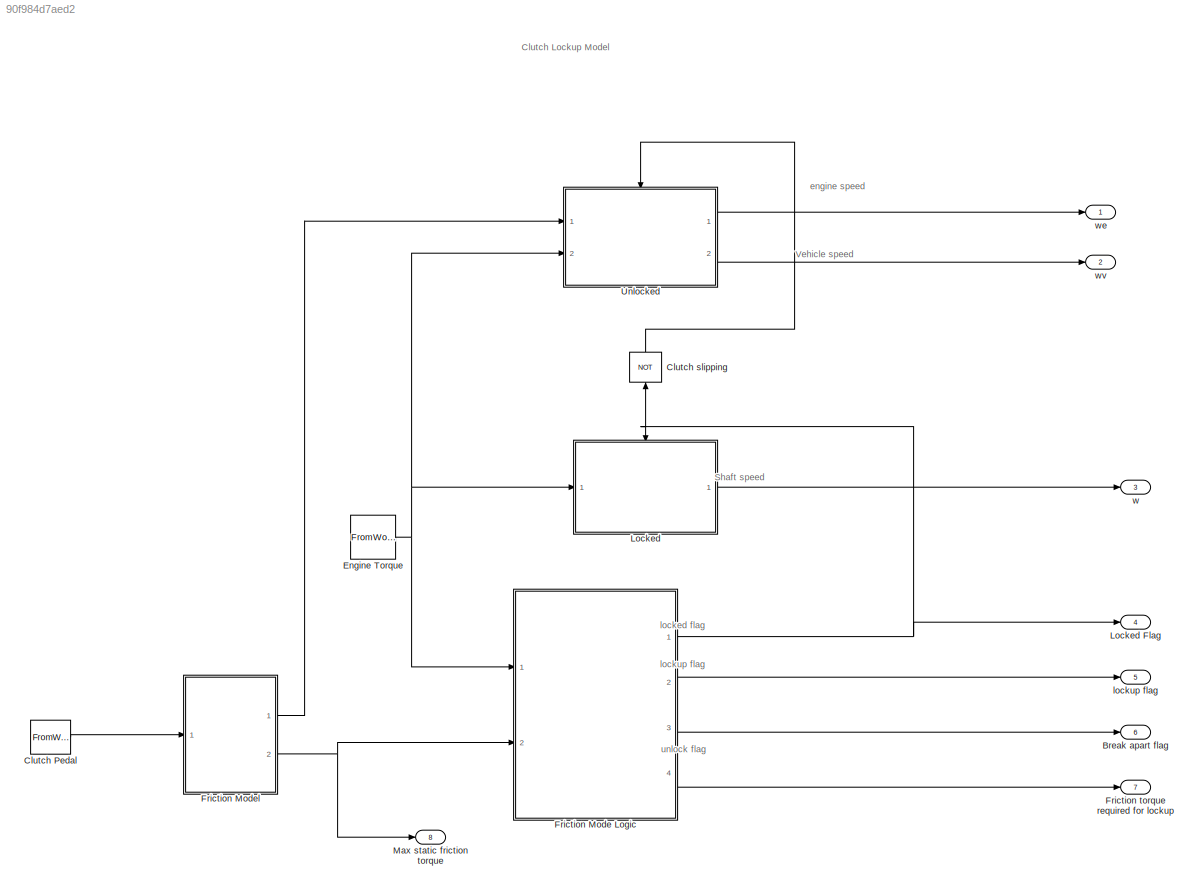
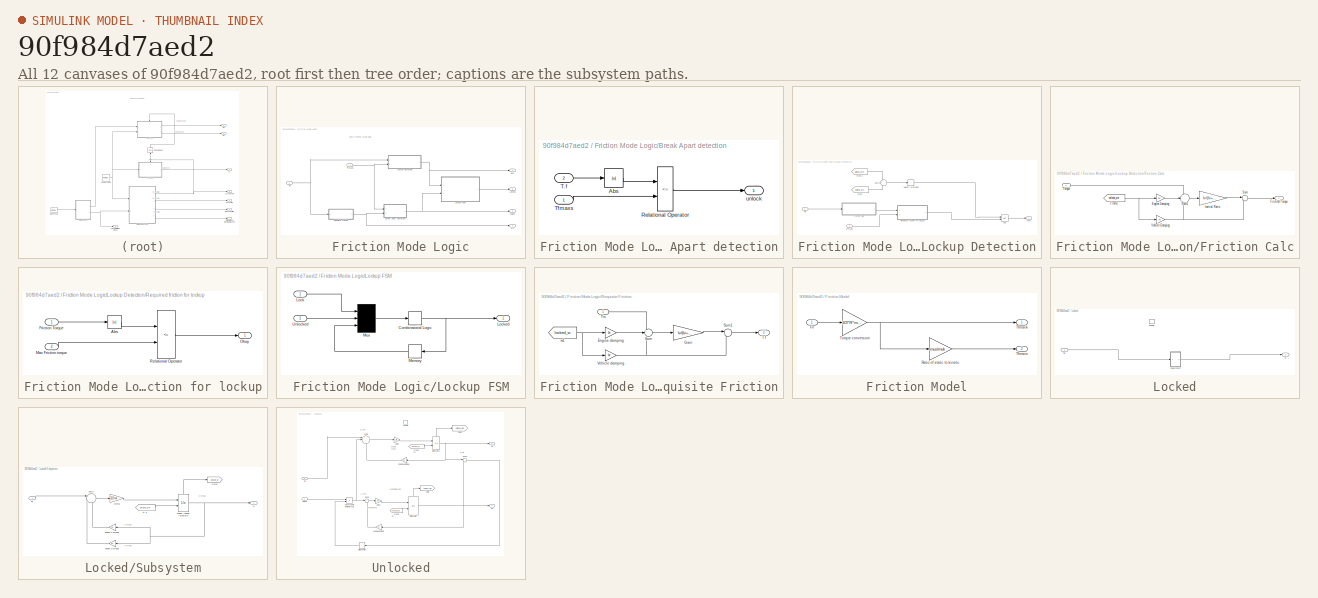
[diagram: thumbnail index - all 12 canvases of the model, root first then tree order]
MODEL slx_90f984d7aed2
KIND model
CONFIG AbsTol = auto
CONFIG EnableMultiTasking = off
CONFIG FixedStep = auto
CONFIG MaxStep = auto
CONFIG MinStep = auto
CONFIG RelTol = 1e-3
CONFIG SampleTimeConstraint = Unconstrained
CONFIG SolverName = VariableStepAuto
CONFIG StartTime = 0.0
CONFIG StopTime = 10.0
BLOCK [Outport] Break apart flag
  Port = 6
BLOCK [FromWorkspace] Clutch Pedal
  VariableName = Fn
  ZeroCross = off
BLOCK [Logic] Clutch slipping
  AllPortsSameDT = off
  IconShape = distinctive
  NameLocation = right
  Operator = NOT
  OutDataTypeStr = boolean
  Ports = [1, 1]
BLOCK [FromWorkspace] Engine Torque
  VariableName = Tin
  ZeroCross = off
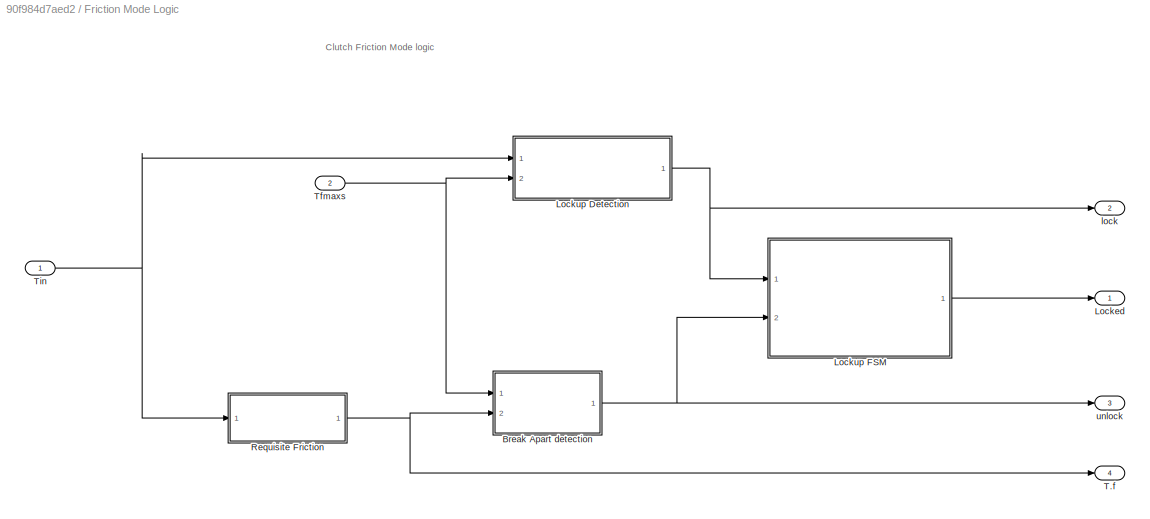
BLOCK [SubSystem] Friction Mode Logic
  Ports = [2, 4]
  RequestExecContextInheritance = off
BLOCK [SubSystem] Friction Mode Logic/Break Apart detection
  Ports = [2, 1]
  RequestExecContextInheritance = off
BLOCK [Abs] Friction Mode Logic/Break Apart detection/Abs
  SaturateOnIntegerOverflow = off
BLOCK [RelationalOperator] Friction Mode Logic/Break Apart detection/Relational Operator
  InputSameDT = off
  Operator = <=
  OutDataTypeStr = boolean
  Ports = [2, 1]
  RndMeth = Simplest
BLOCK [Inport] Friction Mode Logic/Break Apart detection/T.f
  Port = 2
BLOCK [Inport] Friction Mode Logic/Break Apart detection/Tfmaxs
BLOCK [Outport] Friction Mode Logic/Break Apart detection/unlock
BLOCK [Outport] Friction Mode Logic/Locked
BLOCK [SubSystem] Friction Mode Logic/Lockup Detection
  Ports = [2, 1]
  RequestExecContextInheritance = off
BLOCK [Logic] Friction Mode Logic/Lockup Detection/AND
  AllPortsSameDT = off
  IconShape = distinctive
  OutDataTypeStr = boolean
  Ports = [2, 1]
BLOCK [SubSystem] Friction Mode Logic/Lockup Detection/Friction Calc
  Ports = [1, 1]
  RequestExecContextInheritance = off
BLOCK [Gain] Friction Mode Logic/Lockup Detection/Friction Calc/Engine Damping
  Gain = be
BLOCK [Outport] Friction Mode Logic/Lockup Detection/Friction Calc/Friction Torque
BLOCK [From] Friction Mode Logic/Lockup Detection/Friction Calc/From2
  GotoTag = unlock_we
  TagVisibility = global
BLOCK [Gain] Friction Mode Logic/Lockup Detection/Friction Calc/Inertial Ratio
  Gain = Iv/(Iv+Ie)
BLOCK [Sum] Friction Mode Logic/Lockup Detection/Friction Calc/Sum
  Inputs = |++
  Ports = [2, 1]
BLOCK [Sum] Friction Mode Logic/Lockup Detection/Friction Calc/Sum1
  Inputs = +|-|-
  Ports = [3, 1]
BLOCK [Inport] Friction Mode Logic/Lockup Detection/Friction Calc/Torque
BLOCK [Gain] Friction Mode Logic/Lockup Detection/Friction Calc/Vehicle Damping
  Gain = bv
BLOCK [From] Friction Mode Logic/Lockup Detection/From
  GotoTag = unlock_wv
  TagVisibility = global
BLOCK [From] Friction Mode Logic/Lockup Detection/From3
  GotoTag = unlock_we
  TagVisibility = global
BLOCK [SubSystem] Friction Mode Logic/Lockup Detection/Required friction for lockup
  Ports = [2, 1]
  RequestExecContextInheritance = off
BLOCK [Abs] Friction Mode Logic/Lockup Detection/Required friction for lockup/Abs
  SaturateOnIntegerOverflow = off
BLOCK [Inport] Friction Mode Logic/Lockup Detection/Required friction for lockup/Friction Torque
BLOCK [Inport] Friction Mode Logic/Lockup Detection/Required friction for lockup/Max Friction torque
  Port = 2
BLOCK [Outport] Friction Mode Logic/Lockup Detection/Required friction for lockup/Okay
BLOCK [RelationalOperator] Friction Mode Logic/Lockup Detection/Required friction for lockup/Relational Operator
  InputSameDT = off
  Operator = <=
  OutDataTypeStr = boolean
  Ports = [2, 1]
  RndMeth = Simplest
BLOCK [Sum] Friction Mode Logic/Lockup Detection/Sum2
  Inputs = +|||-
  Ports = [2, 1]
BLOCK [Inport] Friction Mode Logic/Lockup Detection/Tfmaxs
  Port = 2
BLOCK [Inport] Friction Mode Logic/Lockup Detection/Tin
BLOCK [HitCross] Friction Mode Logic/Lockup Detection/Velocity Matching
  Ports = [1, 1]
BLOCK [Outport] Friction Mode Logic/Lockup Detection/lock
BLOCK [SubSystem] Friction Mode Logic/Lockup FSM
  Ports = [2, 1]
  RequestExecContextInheritance = off
BLOCK [CombinatorialLogic] Friction Mode Logic/Lockup FSM/Combinatorial Logic
  TruthTable = [0;1;0;0;1;1;1;0]
BLOCK [Inport] Friction Mode Logic/Lockup FSM/Lock
BLOCK [Outport] Friction Mode Logic/Lockup FSM/Locked
BLOCK [Memory] Friction Mode Logic/Lockup FSM/Memory
BLOCK [Mux] Friction Mode Logic/Lockup FSM/Mux
  Inputs = 3
  Ports = [3, 1]
BLOCK [Inport] Friction Mode Logic/Lockup FSM/Unlocked
  Port = 2
BLOCK [SubSystem] Friction Mode Logic/Requisite Friction
  Ports = [1, 1]
  RequestExecContextInheritance = off
BLOCK [Gain] Friction Mode Logic/Requisite Friction/Engine damping
  Gain = be
BLOCK [Gain] Friction Mode Logic/Requisite Friction/Gain
  Gain = Iv/(Iv+Ie)
BLOCK [Sum] Friction Mode Logic/Requisite Friction/Sum
  Inputs = +--
  Ports = [3, 1]
BLOCK [Sum] Friction Mode Logic/Requisite Friction/Sum1
  Inputs = |++
  Ports = [2, 1]
BLOCK [Outport] Friction Mode Logic/Requisite Friction/T.f
  OutDataTypeStr = double
  PortDimensions = 1
  SampleTime = 0
  SamplingMode = Sample based
  SignalType = real
BLOCK [Inport] Friction Mode Logic/Requisite Friction/Tin
  OutDataTypeStr = double
  PortDimensions = 1
  SampleTime = 0
  SamplingMode = Sample based
  SignalType = real
BLOCK [Gain] Friction Mode Logic/Requisite Friction/Vehicle damping
  Gain = bv
BLOCK [From] Friction Mode Logic/Requisite Friction/w1
  GotoTag = locked_w
  TagVisibility = global
BLOCK [Outport] Friction Mode Logic/T.f
  Port = 4
BLOCK [Inport] Friction Mode Logic/Tfmaxs
  Port = 2
BLOCK [Inport] Friction Mode Logic/Tin
BLOCK [Outport] Friction Mode Logic/lock
  Port = 2
BLOCK [Outport] Friction Mode Logic/unlock
  Port = 3
BLOCK [SubSystem] Friction Model
  Ports = [1, 2]
  RequestExecContextInheritance = off
BLOCK [Inport] Friction Model/Fn
BLOCK [Gain] Friction Model/Ratio of static to kinetic
  Gain = mus/muk
BLOCK [Outport] Friction Model/Tfmaxk
BLOCK [Outport] Friction Model/Tfmaxs
  Port = 2
BLOCK [Gain] Friction Model/Torque conversion
  Gain = 2/3*R*muk
BLOCK [Outport] Friction torque required for lockup
  Port = 7
BLOCK [SubSystem] Locked
  Ports = [1, 1, 1]
  RequestExecContextInheritance = off
BLOCK [Outport] Locked Flag
  Port = 4
BLOCK [EnablePort] Locked/Enable
  Ports = []
BLOCK [SubSystem] Locked/Subsystem
  Ports = [1, 1]
  RequestExecContextInheritance = off
BLOCK [Integrator] Locked/Subsystem/Engine //Vehicle Integrator
  InitialConditionSource = external
  Ports = [2, 1, 0, 0, 1]
  ShowStatePort = on
BLOCK [Gain] Locked/Subsystem/Engine Damping
  Gain = be
BLOCK [Goto] Locked/Subsystem/Goto1
  GotoTag = locked_w
  TagVisibility = global
BLOCK [Gain] Locked/Subsystem/Inertia
  Gain = 1/(Iv+Ie)
BLOCK [Sum] Locked/Subsystem/Sum2
  Inputs = ||+--
  Ports = [3, 1]
BLOCK [Inport] Locked/Subsystem/Tin
BLOCK [Gain] Locked/Subsystem/Vehicle Damping
  Gain = bv
BLOCK [Outport] Locked/Subsystem/w
BLOCK [From] Locked/Subsystem/w 0
  GotoTag = unlock_we
  TagVisibility = global
BLOCK [Inport] Locked/Tin
BLOCK [Outport] Locked/w
BLOCK [Outport] Max static friction torque
  Port = 8
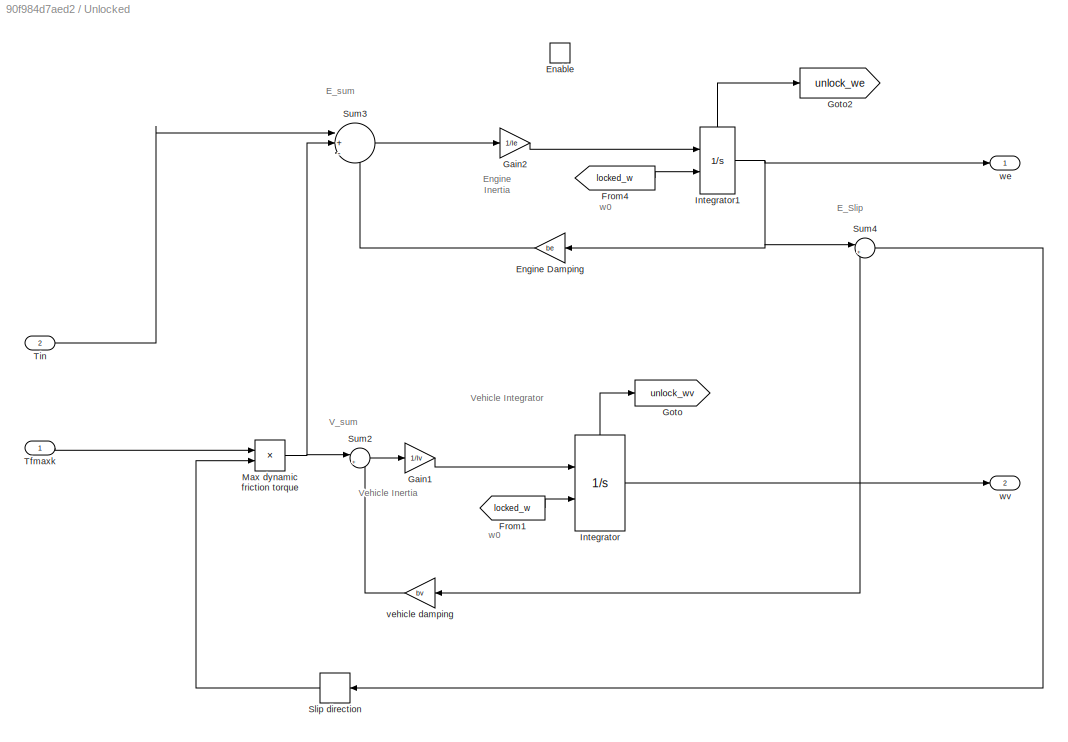
BLOCK [SubSystem] Unlocked
  Ports = [2, 2, 1]
  RequestExecContextInheritance = off
BLOCK [EnablePort] Unlocked/Enable
  Ports = []
  StatesWhenEnabling = reset
BLOCK [Gain] Unlocked/Engine Damping
  Gain = be
BLOCK [From] Unlocked/From1
  GotoTag = locked_w
  TagVisibility = global
BLOCK [From] Unlocked/From4
  GotoTag = locked_w
  TagVisibility = global
BLOCK [Gain] Unlocked/Gain1
  Gain = 1/Iv
BLOCK [Gain] Unlocked/Gain2
  Gain = 1/Ie
BLOCK [Goto] Unlocked/Goto
  GotoTag = unlock_wv
  TagVisibility = global
BLOCK [Goto] Unlocked/Goto2
  GotoTag = unlock_we
  TagVisibility = global
BLOCK [Integrator] Unlocked/Integrator
  InitialConditionSource = external
  Ports = [2, 1, 0, 0, 1]
  ShowStatePort = on
BLOCK [Integrator] Unlocked/Integrator1
  InitialConditionSource = external
  Ports = [2, 1, 0, 0, 1]
  ShowStatePort = on
BLOCK [Product] Unlocked/Max dynamic friction torque
  Ports = [2, 1]
BLOCK [Signum] Unlocked/Slip direction
BLOCK [Sum] Unlocked/Sum2
  Inputs = |+-
  Ports = [2, 1]
BLOCK [Sum] Unlocked/Sum3
  Inputs = |+--
  Ports = [3, 1]
BLOCK [Sum] Unlocked/Sum4
  Inputs = |+-
  Ports = [2, 1]
BLOCK [Inport] Unlocked/Tfmaxk
BLOCK [Inport] Unlocked/Tin
  Port = 2
BLOCK [Gain] Unlocked/vehicle damping
  Gain = bv
BLOCK [Outport] Unlocked/we
BLOCK [Outport] Unlocked/wv
  Port = 2
BLOCK [Outport] lockup flag
  Port = 5
BLOCK [Outport] w
  Port = 3
BLOCK [Outport] we
BLOCK [Outport] wv
  Port = 2
ANNOTATION (root): Clutch Lockup Model
ANNOTATION (root): Shaft speed
ANNOTATION (root): Vehicle speed
ANNOTATION (root): engine speed
ANNOTATION (root): locked flag
ANNOTATION (root): lockup flag
ANNOTATION (root): unlock flag
ANNOTATION Friction Mode Logic: Clutch Friction Mode logic
ANNOTATION Locked/Subsystem: Omega
ANNOTATION Unlocked: E_Slip
ANNOTATION Unlocked: E_sum
ANNOTATION Unlocked: Engine Inertia
ANNOTATION Unlocked: V_sum
ANNOTATION Unlocked: Vehicle Inertia
ANNOTATION Unlocked: Vehicle Integrator
ANNOTATION Unlocked: w0
LINE Clutch Pedal:1 -> Friction Model:1
LINE Clutch slipping:1 -> Unlocked:enable
NET Engine Torque:1 -> Friction Mode Logic:1, Locked:1, Unlocked:2
LINE Friction Mode Logic/Break Apart detection/Abs:1 -> Friction Mode Logic/Break Apart detection/Relational Operator:1
LINE Friction Mode Logic/Break Apart detection/Relational Operator:1 -> Friction Mode Logic/Break Apart detection/unlock:1
LINE Friction Mode Logic/Break Apart detection/T.f:1 -> Friction Mode Logic/Break Apart detection/Abs:1
LINE Friction Mode Logic/Break Apart detection/Tfmaxs:1 -> Friction Mode Logic/Break Apart detection/Relational Operator:2
NET Friction Mode Logic/Break Apart detection:1 -> Friction Mode Logic/Lockup FSM:2, Friction Mode Logic/unlock:1
LINE Friction Mode Logic/Lockup Detection/AND:1 -> Friction Mode Logic/Lockup Detection/lock:1
LINE Friction Mode Logic/Lockup Detection/Friction Calc/Engine Damping:1 -> Friction Mode Logic/Lockup Detection/Friction Calc/Sum1:2
NET Friction Mode Logic/Lockup Detection/Friction Calc/From2:1 -> Friction Mode Logic/Lockup Detection/Friction Calc/Engine Damping:1, Friction Mode Logic/Lockup Detection/Friction Calc/Vehicle Damping:1
LINE Friction Mode Logic/Lockup Detection/Friction Calc/Inertial Ratio:1 -> Friction Mode Logic/Lockup Detection/Friction Calc/Sum:1
LINE Friction Mode Logic/Lockup Detection/Friction Calc/Sum1:1 -> Friction Mode Logic/Lockup Detection/Friction Calc/Inertial Ratio:1
LINE Friction Mode Logic/Lockup Detection/Friction Calc/Sum:1 -> Friction Mode Logic/Lockup Detection/Friction Calc/Friction Torque:1
LINE Friction Mode Logic/Lockup Detection/Friction Calc/Torque:1 -> Friction Mode Logic/Lockup Detection/Friction Calc/Sum1:1
NET Friction Mode Logic/Lockup Detection/Friction Calc/Vehicle Damping:1 -> Friction Mode Logic/Lockup Detection/Friction Calc/Sum1:3, Friction Mode Logic/Lockup Detection/Friction Calc/Sum:2
LINE Friction Mode Logic/Lockup Detection/Friction Calc:1 -> Friction Mode Logic/Lockup Detection/Required friction for lockup:1
LINE Friction Mode Logic/Lockup Detection/From3:1 -> Friction Mode Logic/Lockup Detection/Sum2:1
LINE Friction Mode Logic/Lockup Detection/From:1 -> Friction Mode Logic/Lockup Detection/Sum2:2
LINE Friction Mode Logic/Lockup Detection/Required friction for lockup/Abs:1 -> Friction Mode Logic/Lockup Detection/Required friction for lockup/Relational Operator:1
LINE Friction Mode Logic/Lockup Detection/Required friction for lockup/Friction Torque:1 -> Friction Mode Logic/Lockup Detection/Required friction for lockup/Abs:1
LINE Friction Mode Logic/Lockup Detection/Required friction for lockup/Max Friction torque:1 -> Friction Mode Logic/Lockup Detection/Required friction for lockup/Relational Operator:2
LINE Friction Mode Logic/Lockup Detection/Required friction for lockup/Relational Operator:1 -> Friction Mode Logic/Lockup Detection/Required friction for lockup/Okay:1
LINE Friction Mode Logic/Lockup Detection/Required friction for lockup:1 -> Friction Mode Logic/Lockup Detection/AND:2
LINE Friction Mode Logic/Lockup Detection/Sum2:1 -> Friction Mode Logic/Lockup Detection/Velocity Matching:1
LINE Friction Mode Logic/Lockup Detection/Tfmaxs:1 -> Friction Mode Logic/Lockup Detection/Required friction for lockup:2
LINE Friction Mode Logic/Lockup Detection/Tin:1 -> Friction Mode Logic/Lockup Detection/Friction Calc:1
LINE Friction Mode Logic/Lockup Detection/Velocity Matching:1 -> Friction Mode Logic/Lockup Detection/AND:1
NET Friction Mode Logic/Lockup Detection:1 -> Friction Mode Logic/Lockup FSM:1, Friction Mode Logic/lock:1
NET Friction Mode Logic/Lockup FSM/Combinatorial Logic:1 -> Friction Mode Logic/Lockup FSM/Locked:1, Friction Mode Logic/Lockup FSM/Memory:1
LINE Friction Mode Logic/Lockup FSM/Lock:1 -> Friction Mode Logic/Lockup FSM/Mux:1
LINE Friction Mode Logic/Lockup FSM/Memory:1 -> Friction Mode Logic/Lockup FSM/Mux:3
LINE Friction Mode Logic/Lockup FSM/Mux:1 -> Friction Mode Logic/Lockup FSM/Combinatorial Logic:1
LINE Friction Mode Logic/Lockup FSM/Unlocked:1 -> Friction Mode Logic/Lockup FSM/Mux:2
LINE Friction Mode Logic/Lockup FSM:1 -> Friction Mode Logic/Locked:1
LINE Friction Mode Logic/Requisite Friction/Engine damping:1 -> Friction Mode Logic/Requisite Friction/Sum:2
LINE Friction Mode Logic/Requisite Friction/Gain:1 -> Friction Mode Logic/Requisite Friction/Sum1:1
LINE Friction Mode Logic/Requisite Friction/Sum1:1 -> Friction Mode Logic/Requisite Friction/T.f:1
LINE Friction Mode Logic/Requisite Friction/Sum:1 -> Friction Mode Logic/Requisite Friction/Gain:1
LINE Friction Mode Logic/Requisite Friction/Tin:1 -> Friction Mode Logic/Requisite Friction/Sum:1
NET Friction Mode Logic/Requisite Friction/Vehicle damping:1 -> Friction Mode Logic/Requisite Friction/Sum1:2, Friction Mode Logic/Requisite Friction/Sum:3
NET Friction Mode Logic/Requisite Friction/w1:1 -> Friction Mode Logic/Requisite Friction/Engine damping:1, Friction Mode Logic/Requisite Friction/Vehicle damping:1
NET Friction Mode Logic/Requisite Friction:1 -> Friction Mode Logic/Break Apart detection:2, Friction Mode Logic/T.f:1
NET Friction Mode Logic/Tfmaxs:1 -> Friction Mode Logic/Break Apart detection:1, Friction Mode Logic/Lockup Detection:2
NET Friction Mode Logic/Tin:1 -> Friction Mode Logic/Lockup Detection:1, Friction Mode Logic/Requisite Friction:1
NET Friction Mode Logic:1 -> Clutch slipping:1, Locked Flag:1, Locked:enable
LINE Friction Mode Logic:2 -> lockup flag:1
LINE Friction Mode Logic:3 -> Break apart flag:1
LINE Friction Mode Logic:4 -> Friction torque required for lockup:1
LINE Friction Model/Fn:1 -> Friction Model/Torque conversion:1
LINE Friction Model/Ratio of static to kinetic:1 -> Friction Model/Tfmaxs:1
NET Friction Model/Torque conversion:1 -> Friction Model/Ratio of static to kinetic:1, Friction Model/Tfmaxk:1
LINE Friction Model:1 -> Unlocked:1
NET Friction Model:2 -> Friction Mode Logic:2, Max static friction torque:1
NET Locked/Subsystem/Engine //Vehicle Integrator:1 -> Locked/Subsystem/Engine Damping:1, Locked/Subsystem/Vehicle Damping:1, Locked/Subsystem/w:1
LINE Locked/Subsystem/Engine //Vehicle Integrator:state -> Locked/Subsystem/Goto1:1
LINE Locked/Subsystem/Engine Damping:1 -> Locked/Subsystem/Sum2:3
LINE Locked/Subsystem/Inertia:1 -> Locked/Subsystem/Engine //Vehicle Integrator:1
LINE Locked/Subsystem/Sum2:1 -> Locked/Subsystem/Inertia:1
LINE Locked/Subsystem/Tin:1 -> Locked/Subsystem/Sum2:1
LINE Locked/Subsystem/Vehicle Damping:1 -> Locked/Subsystem/Sum2:2
LINE Locked/Subsystem/w 0:1 -> Locked/Subsystem/Engine //Vehicle Integrator:2
LINE Locked/Subsystem:1 -> Locked/w:1
LINE Locked/Tin:1 -> Locked/Subsystem:1
LINE Locked:1 -> w:1
LINE Unlocked/Engine Damping:1 -> Unlocked/Sum3:3
LINE Unlocked/From1:1 -> Unlocked/Integrator:2
LINE Unlocked/From4:1 -> Unlocked/Integrator1:2
LINE Unlocked/Gain1:1 -> Unlocked/Integrator:1
LINE Unlocked/Gain2:1 -> Unlocked/Integrator1:1
NET Unlocked/Integrator1:1 -> Unlocked/Engine Damping:1, Unlocked/Sum4:1, Unlocked/we:1
LINE Unlocked/Integrator1:state -> Unlocked/Goto2:1
NET Unlocked/Integrator:1 -> Unlocked/Sum4:2, Unlocked/vehicle damping:1, Unlocked/wv:1
LINE Unlocked/Integrator:state -> Unlocked/Goto:1
NET Unlocked/Max dynamic friction torque:1 -> Unlocked/Sum2:1, Unlocked/Sum3:2
LINE Unlocked/Slip direction:1 -> Unlocked/Max dynamic friction torque:2
LINE Unlocked/Sum2:1 -> Unlocked/Gain1:1
LINE Unlocked/Sum3:1 -> Unlocked/Gain2:1
LINE Unlocked/Sum4:1 -> Unlocked/Slip direction:1
LINE Unlocked/Tfmaxk:1 -> Unlocked/Max dynamic friction torque:1
LINE Unlocked/Tin:1 -> Unlocked/Sum3:1
LINE Unlocked/vehicle damping:1 -> Unlocked/Sum2:2
LINE Unlocked:1 -> we:1
LINE Unlocked:2 -> wv:1
note: NET lines group one-source signal fan-out (src -> all destinations, sorted); 1:1 wires keep LINE
